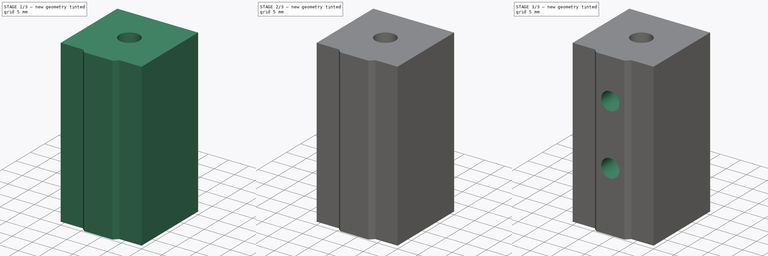
[diagram: build sequence overview — one tinted view per stage of 3, left to right]
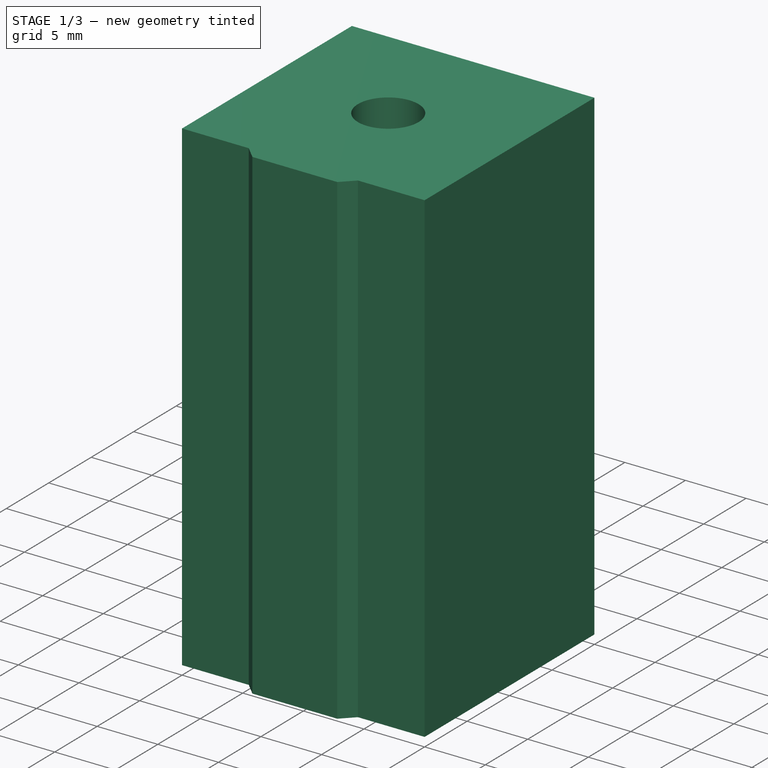
[diagram: stage 1 of 3 — iso view after this stage's code; geometry added in this stage tinted green]
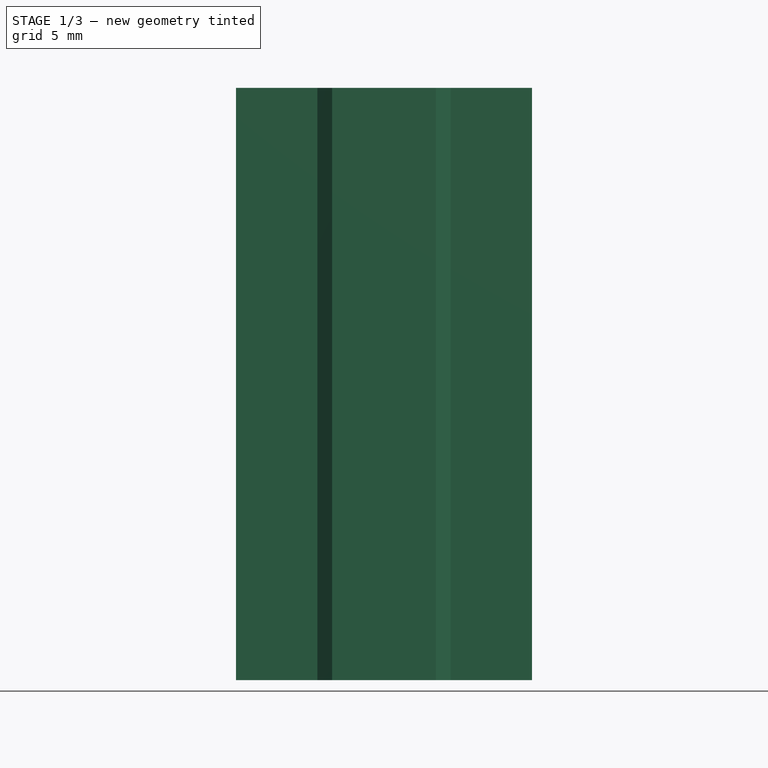
[diagram: stage 1 of 3 — front view after this stage's code; geometry added in this stage tinted green]
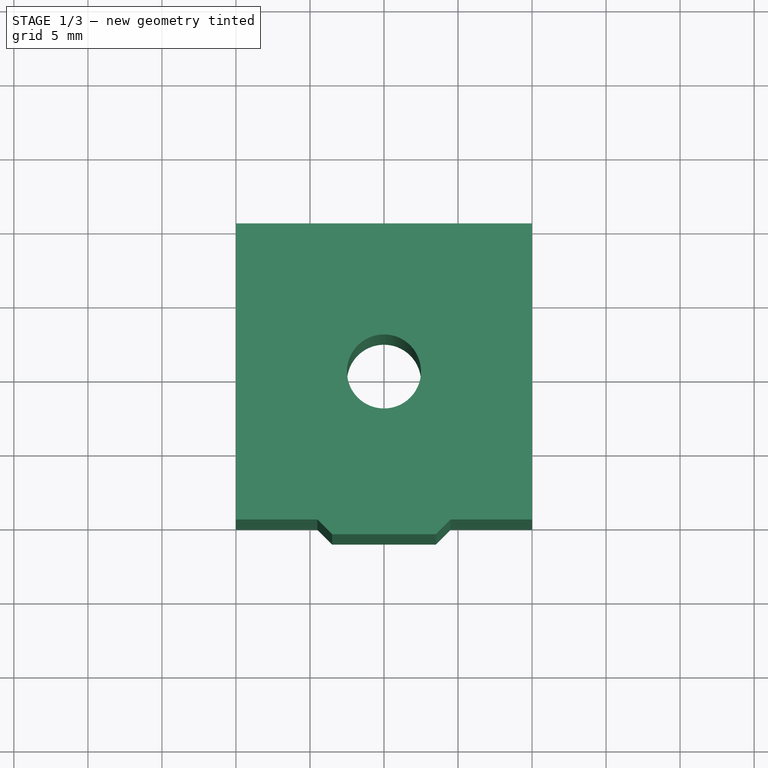
[diagram: stage 1 of 3 — top view after this stage's code; geometry added in this stage tinted green]
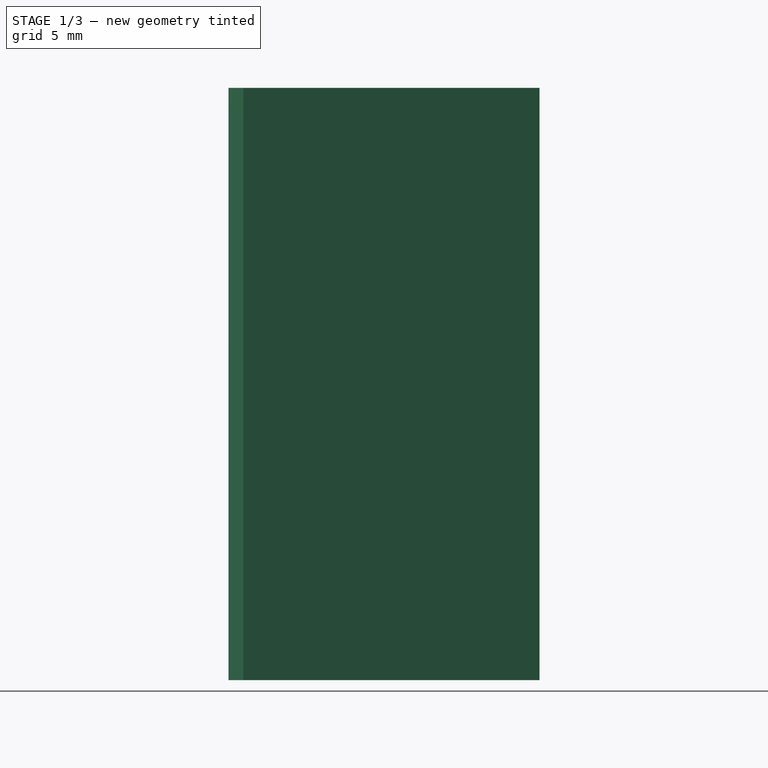
[diagram: stage 1 of 3 — right view after this stage's code; geometry added in this stage tinted green]
FCSTD DOCUMENT  (FreeCAD 0.19R24366 (Git))
Label: 2020_profile_coupler_holder
License: All rights reserved
LicenseURL: http://en.wikipedia.org/wiki/All_rights_reserved
objects: Sketcher::SketchObject×5, PartDesign::Pocket×4, Spreadsheet::Sheet×1, PartDesign::Pad×1, PartDesign::Plane×1, PartDesign::Body×1
note: 17 computed .brp shape members not serialized (recipe doc carries the construction recipe); baked Part::Feature solids carry a one-line shape summary decoded from their .brp

FEATURE [Spreadsheet::Sheet] Spreadsheet
  cells = A1=Coupler hole size; B1=Coupler hole Depth; A2(couplerHoleSize)=9; B2(couplerHoleDepth)=8; A3=Holder length; A4(holderLength)=40; A5=Tube hole size; A6(tubeHoleSize)=5; A7=Screw Hole size; B7=Screw Head size; C7=Screw A position; D7=Screw B position; E7=Screw Head Depth; A8(screwHoleSize)=4.5; B8(screwHeadSize)=7.5; C8(screwPositionA)=15; D8(screwPositionB)=30; E8(screwHeadDepth)=17
FEATURE [Sketcher::SketchObject] Sketch
  FullyConstrained = true
  MapMode = 5
  Support = -> [XY_Plane]
  sketch-geometry (11):
    g0: LineSegment StartX=-10 StartY=-10 StartZ=0 EndX=-10 EndY=10 EndZ=0
    g1: LineSegment StartX=-10 StartY=10 StartZ=0 EndX=10 EndY=10 EndZ=0
    g2: LineSegment StartX=10 StartY=10 StartZ=0 EndX=10 EndY=-10 EndZ=0
    g3: LineSegment StartX=10 StartY=-10 StartZ=0 EndX=-10 EndY=-10 EndZ=0
    g4: LineSegment StartX=-10 StartY=-10 StartZ=0 EndX=-4.5 EndY=-10 EndZ=0
    g5: LineSegment StartX=-4.5 StartY=-10 StartZ=0 EndX=-3.5 EndY=-11 EndZ=0
    g6: LineSegment StartX=-3.5 StartY=-11 StartZ=0 EndX=3.5 EndY=-11 EndZ=0
    g7: LineSegment StartX=3.5 StartY=-11 StartZ=0 EndX=4.5 EndY=-10 EndZ=0
    g8: LineSegment StartX=4.5 StartY=-10 StartZ=0 EndX=10 EndY=-10 EndZ=0
    g9: GeomPoint X=-1e-16 Y=-10 Z=0
    g10: LineSegment StartX=-3.5 StartY=-11 StartZ=0 EndX=-3.5 EndY=-10 EndZ=0
  constraints (28):
    c: Vertical(g0)
    c: Coincident(g0,g1)
    c: Horizontal(g1)
    c: Coincident(g1,g2)
    c: Coincident(g3,g2)
    c: Coincident(g3,g0)
    c: Horizontal(g3)
    c: Vertical(g2)
    c: Equal(g0,g1)
    c: Symmetric(g0,g1,g-1)
    c: Distance(g2) = 20
    c: Coincident(g0,g4)
    c: PointOnObject(g4,g3)
    c: Coincident(g4,g5)
    c: Coincident(g5,g6)
    c: Horizontal(g6)
    c: Coincident(g6,g7)
    c: Coincident(g7,g8)
    c: Coincident(g8,g2)
    c: Symmetric(g0,g2,g9)
    c: Symmetric(g4,g7,g9)
    c: Angle(g4,g5) = 2.35619
    c: Angle(g7,g8) = 2.35619
    c: Distance(g4,g7) = 9
    c: Coincident(g10,g5)
    c: PointOnObject(g10,g3)
    c: Vertical(g10)
    c: Distance(g10) = 1
FEATURE [PartDesign::Pad] Pad  label="holderBody"
  Direction = (1,1,1)
  Length = 40
  Length2 = 100
  Profile = -> Sketch
  Type = 0
  expr: Length = <<Spreadsheet>>.holderLength
FEATURE [Sketcher::SketchObject] Sketch001
  FullyConstrained = true
  MapMode = 5
  Support = -> [XY_Plane]
  expr: Constraints[1] = <<Spreadsheet>>.tubeHoleSize
  sketch-geometry (1):
    g0: Circle CenterX=0 CenterY=0 CenterZ=0 NormalX=0 NormalY=0 NormalZ=1 AngleXU=0 Radius=2.5
  constraints (2):
    c: Coincident(g0,g-1)
    c: Diameter(g0) = 5
FEATURE [PartDesign::Pocket] Pocket  label="tubePocket"
  BaseFeature = -> Pad
  Length = 40
  Length2 = 100
  Profile = -> Sketch001
  Reversed = true
  Type = 0
  expr: Length = <<Spreadsheet>>.holderLength
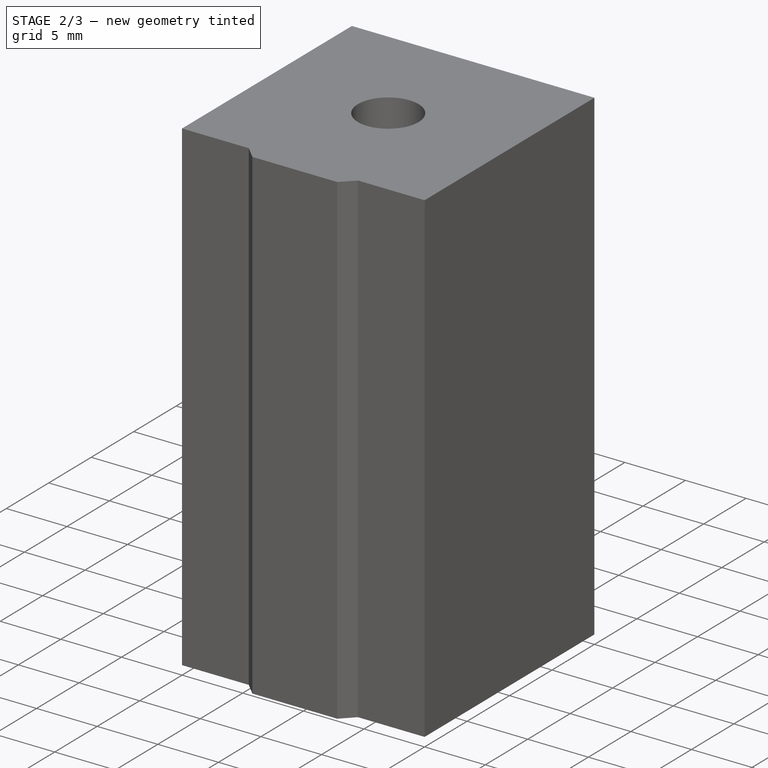
[diagram: stage 2 of 3 — iso view after this stage's code; geometry added in this stage tinted green]
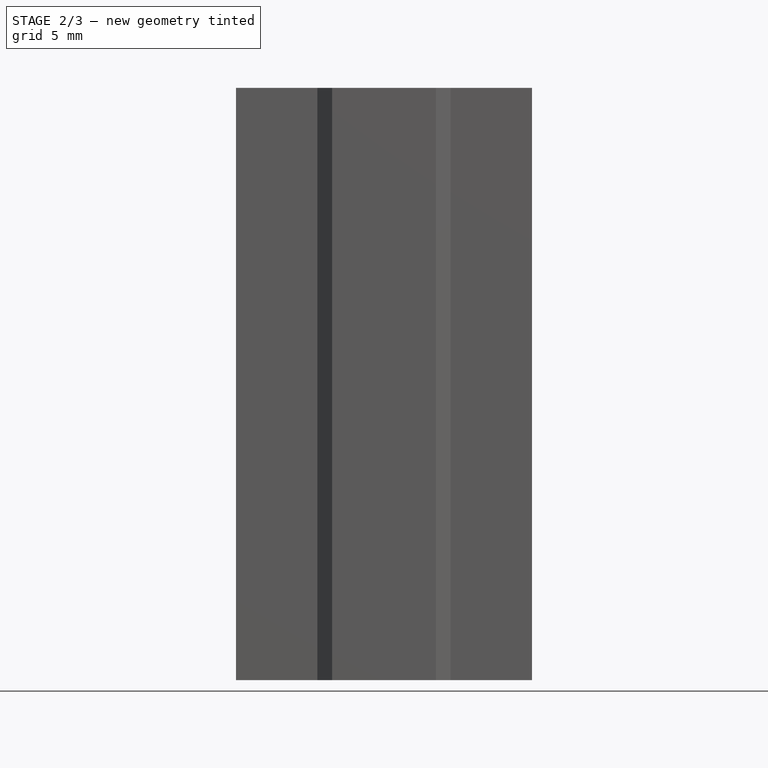
[diagram: stage 2 of 3 — front view after this stage's code; geometry added in this stage tinted green]
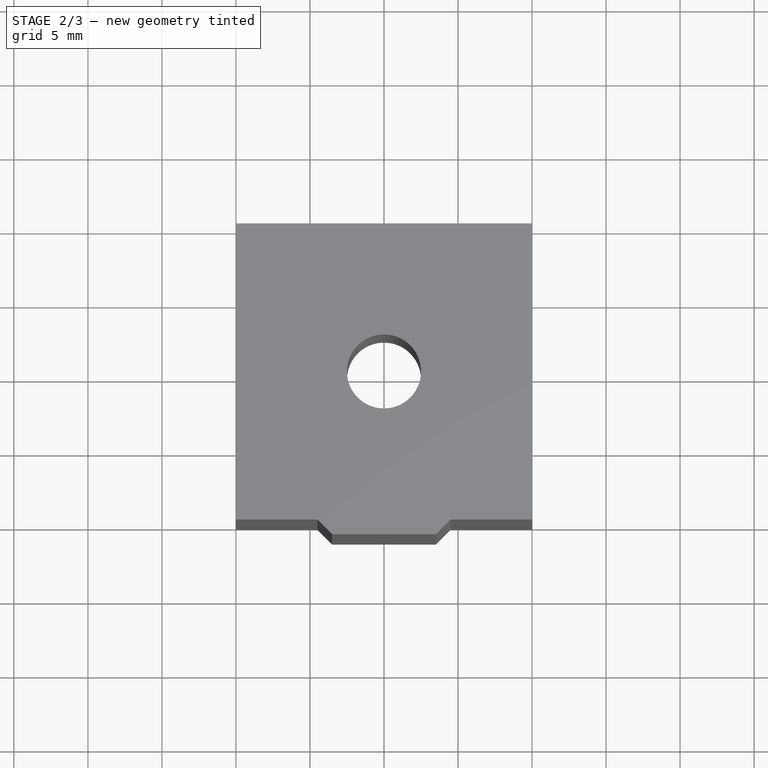
[diagram: stage 2 of 3 — top view after this stage's code; geometry added in this stage tinted green]
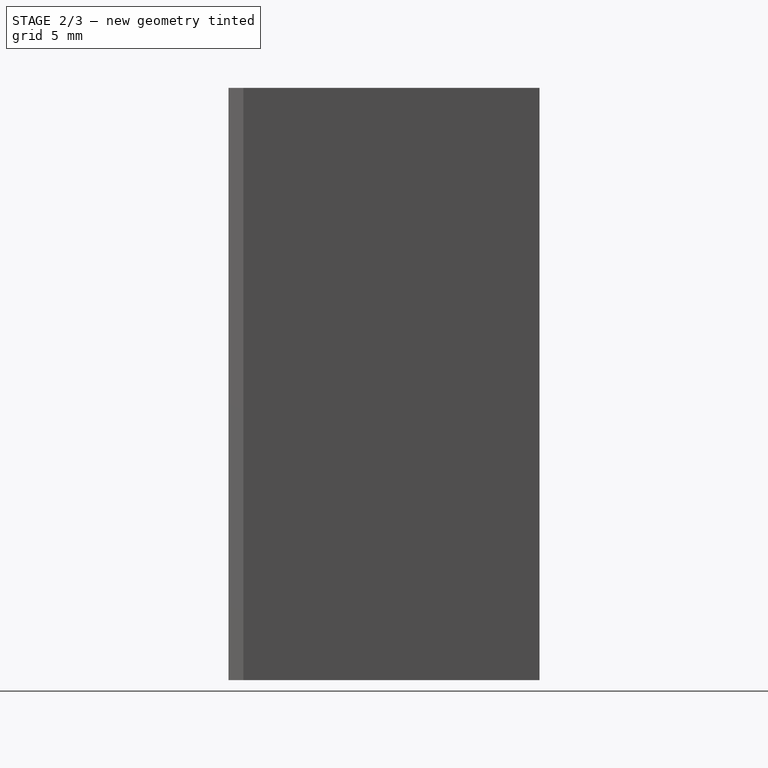
[diagram: stage 2 of 3 — right view after this stage's code; geometry added in this stage tinted green]
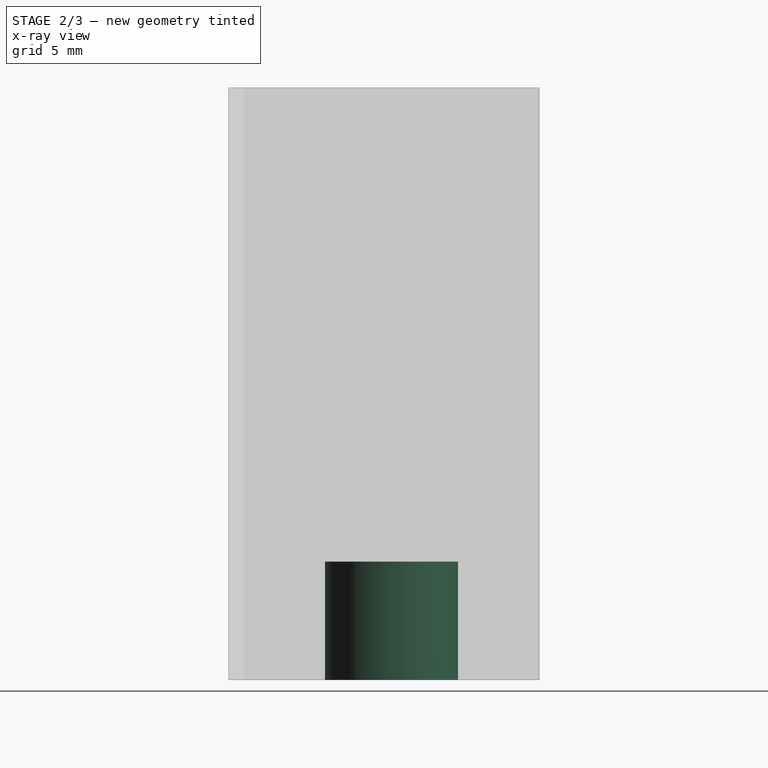
[diagram: stage 2 of 3 — x-ray composite at the right view; earlier geometry ghosted, this stage's added geometry solid]
FEATURE [Sketcher::SketchObject] Sketch002
  FullyConstrained = true
  MapMode = 5
  Support = -> [XY_Plane]
  expr: Constraints[1] = <<Spreadsheet>>.couplerHoleSize
  sketch-geometry (1):
    g0: Circle CenterX=0 CenterY=0 CenterZ=0 NormalX=0 NormalY=0 NormalZ=1 AngleXU=0 Radius=4.5
  constraints (2):
    c: Coincident(g0,g-1)
    c: Diameter(g0) = 9
FEATURE [PartDesign::Pocket] Pocket001  label="couplerPocket"
  BaseFeature = -> Pocket
  Length = 8
  Length2 = 100
  Profile = -> Sketch002
  Reversed = true
  Type = 0
  expr: Length = <<Spreadsheet>>.couplerHoleDepth
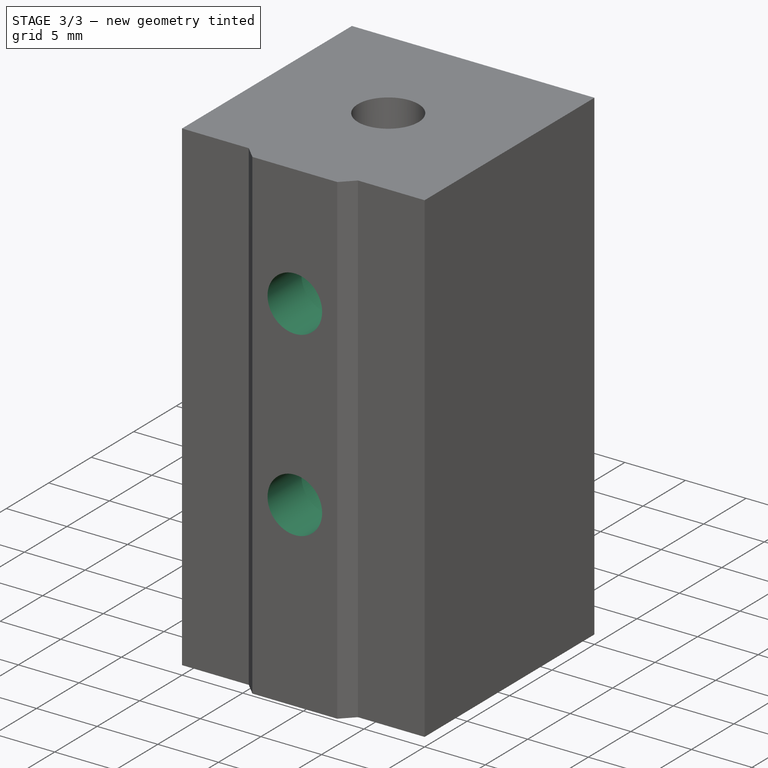
[diagram: stage 3 of 3 — iso view after this stage's code; geometry added in this stage tinted green]
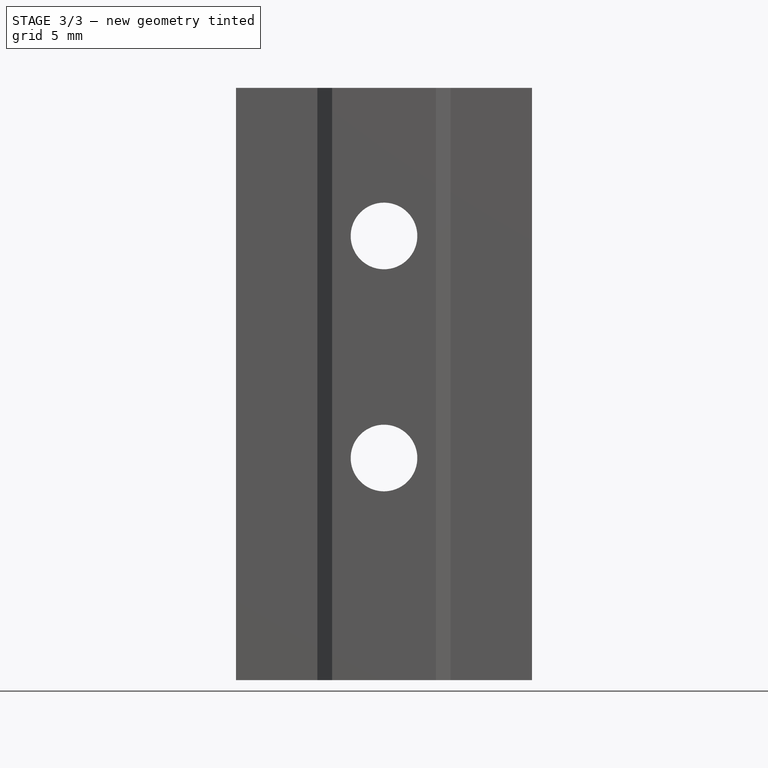
[diagram: stage 3 of 3 — front view after this stage's code; geometry added in this stage tinted green]
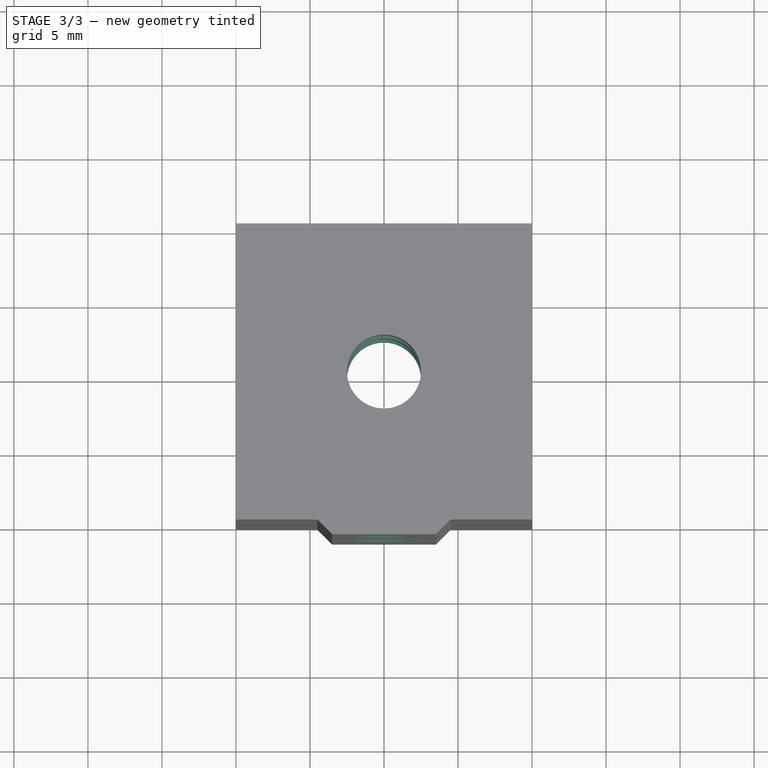
[diagram: stage 3 of 3 — top view after this stage's code; geometry added in this stage tinted green]
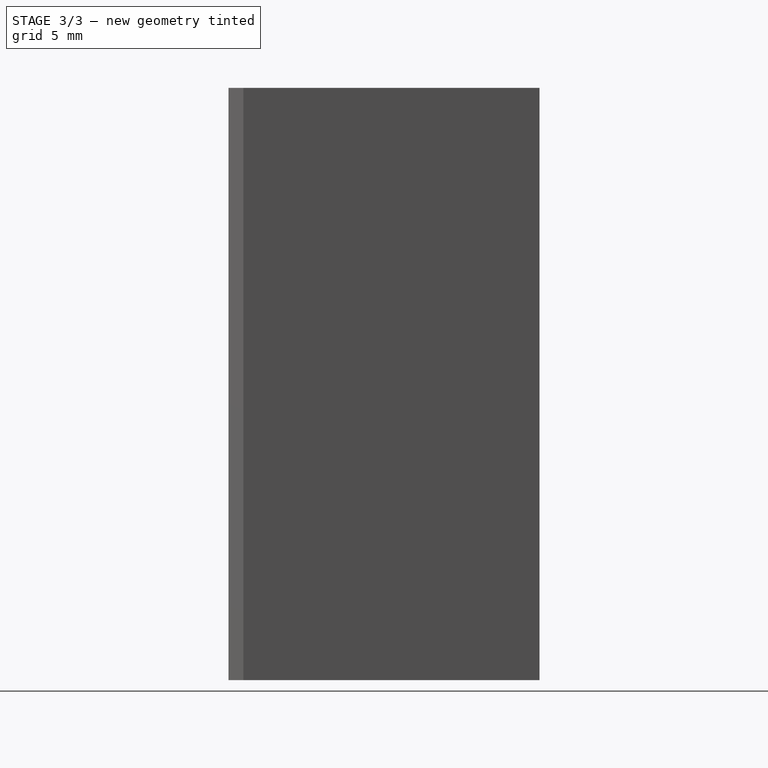
[diagram: stage 3 of 3 — right view after this stage's code; geometry added in this stage tinted green]
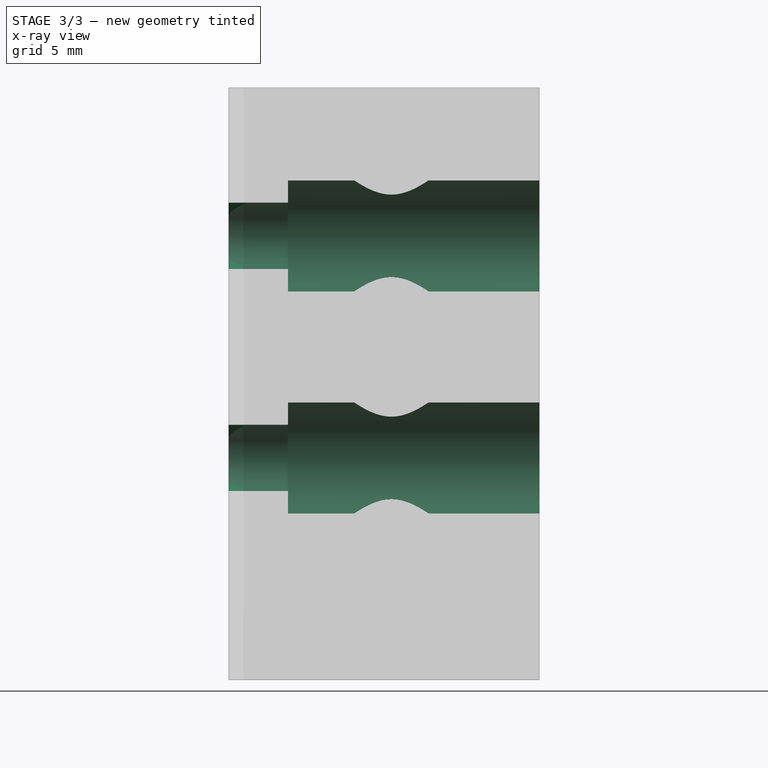
[diagram: stage 3 of 3 — x-ray composite at the right view; earlier geometry ghosted, this stage's added geometry solid]
FEATURE [PartDesign::Plane] DatumPlane  label="topPlane"
  AttachmentOffset = pos=(0,0,-10) rot=(0,0,1;0rad)
  Length = 61.4018
  MapMode = 5
  Placement = pos=(0,10,-2.2e-15) rot=(1,0,0;1.5708rad)
  ResizeMode = 0
  Support = -> [XZ_Plane]
  Width = 76.4018
  expr: .AttachmentOffset.Base.z = -10
FEATURE [Sketcher::SketchObject] Sketch003
  FullyConstrained = true
  MapMode = 5
  Placement = pos=(0,10,-2.2e-15) rot=(1,0,0;1.5708rad)
  Support = -> [DatumPlane]
  expr: Constraints[9] = <<Spreadsheet>>.screwPositionB - <<Spreadsheet>>.screwPositionA
  expr: Constraints[8] = <<Spreadsheet>>.screwPositionA
  expr: Constraints[7] = <<Spreadsheet>>.screwHoleSize
  sketch-geometry (4):
    g0: Circle CenterX=0 CenterY=15 CenterZ=0 NormalX=0 NormalY=0 NormalZ=1 AngleXU=0 Radius=2.25
    g1: Circle CenterX=0 CenterY=30 CenterZ=0 NormalX=0 NormalY=0 NormalZ=1 AngleXU=0 Radius=2.25
    g2: LineSegment StartX=0 StartY=0 StartZ=0 EndX=0 EndY=15 EndZ=0
    g3: LineSegment StartX=0 StartY=15 StartZ=0 EndX=0 EndY=30 EndZ=0
  constraints (10):
    c: PointOnObject(g0,g-2)
    c: PointOnObject(g1,g-2)
    c: Equal(g0,g1)
    c: Coincident(g2,g3)
    c: Coincident(g3,g1)
    c: Coincident(g0,g2)
    c: Coincident(g2,g-1)
    c: Diameter(g0) = 4.5
    c: Distance(g2) = 15
    c: Distance(g3) = 15
FEATURE [PartDesign::Pocket] Pocket002  label="screwHolePocket"
  BaseFeature = -> Pocket001
  Length = 22
  Length2 = 100
  Profile = -> Sketch003
  Reversed = true
  Type = 0
FEATURE [Sketcher::SketchObject] Sketch004
  FullyConstrained = true
  MapMode = 5
  Placement = pos=(0,10,-2.2e-15) rot=(1,0,0;1.5708rad)
  Support = -> [DatumPlane]
  expr: Constraints[10] = <<Spreadsheet>>.screwPositionB - <<Spreadsheet>>.screwPositionA
  expr: Constraints[9] = <<Spreadsheet>>.screwPositionA
  expr: Constraints[8] = <<Spreadsheet>>.screwHeadSize
  sketch-geometry (4):
    g0: LineSegment StartX=0 StartY=0 StartZ=0 EndX=0 EndY=15 EndZ=0
    g1: LineSegment StartX=0 StartY=15 StartZ=0 EndX=0 EndY=30 EndZ=0
    g2: Circle CenterX=0 CenterY=30 CenterZ=0 NormalX=0 NormalY=0 NormalZ=1 AngleXU=0 Radius=3.75
    g3: Circle CenterX=0 CenterY=15 CenterZ=0 NormalX=0 NormalY=0 NormalZ=1 AngleXU=0 Radius=3.75
  constraints (11):
    c: PointOnObject(g0,g-1)
    c: Coincident(g0,g1)
    c: Vertical(g1)
    c: Vertical(g0)
    c: PointOnObject(g0,g-2)
    c: Coincident(g3,g0)
    c: Coincident(g2,g1)
    c: Equal(g2,g3)
    c: Diameter(g2) = 7.5
    c: Distance(g0) = 15
    c: Distance(g1) = 15
FEATURE [PartDesign::Pocket] Pocket003  label="screwHeadPocket"
  BaseFeature = -> Pocket002
  Length = 17
  Length2 = 100
  Profile = -> Sketch004
  Reversed = true
  Type = 0
  expr: Length = <<Spreadsheet>>.screwHeadDepth
FEATURE [PartDesign::Body] Body
  Group = -> [Sketch,Pad,Sketch001,Pocket,Sketch002,Pocket001,DatumPlane,Sketch003,Pocket002,Sketch004,Pocket003]
  Origin = -> Origin
  Tip = -> Pocket003
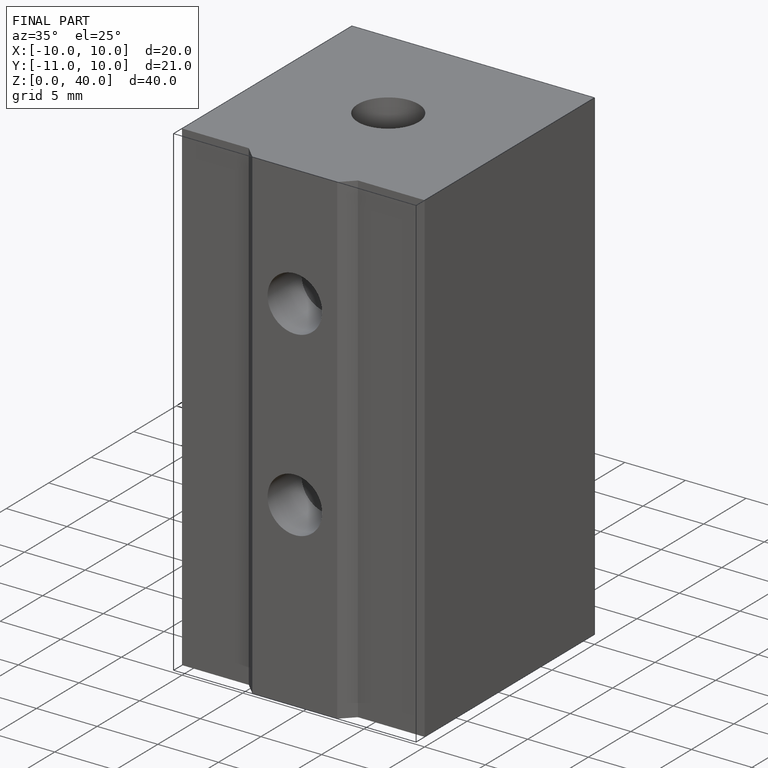
[diagram: finished part — iso view with bounding-box wireframe]
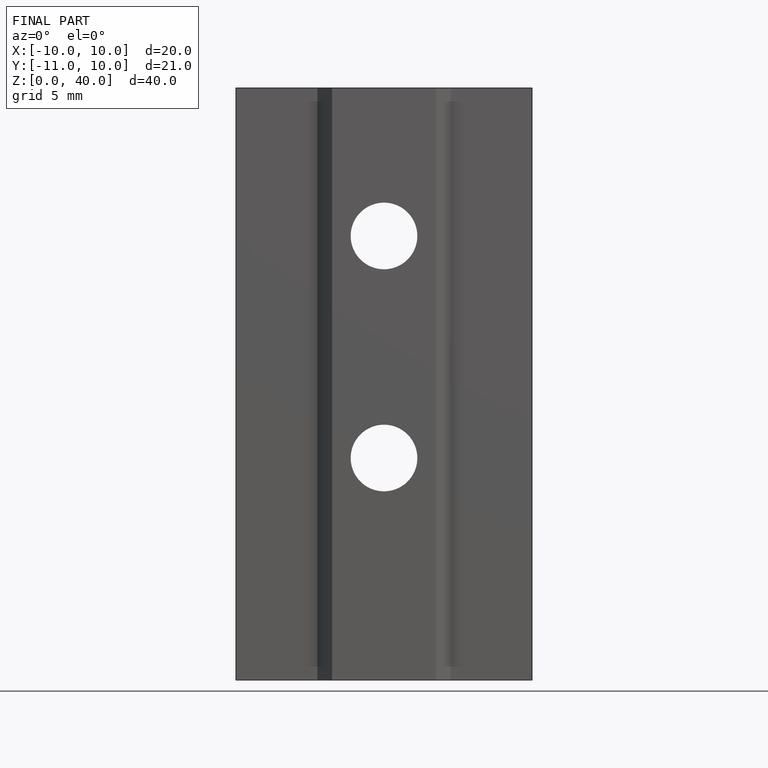
[diagram: finished part — front view with bounding-box wireframe]
